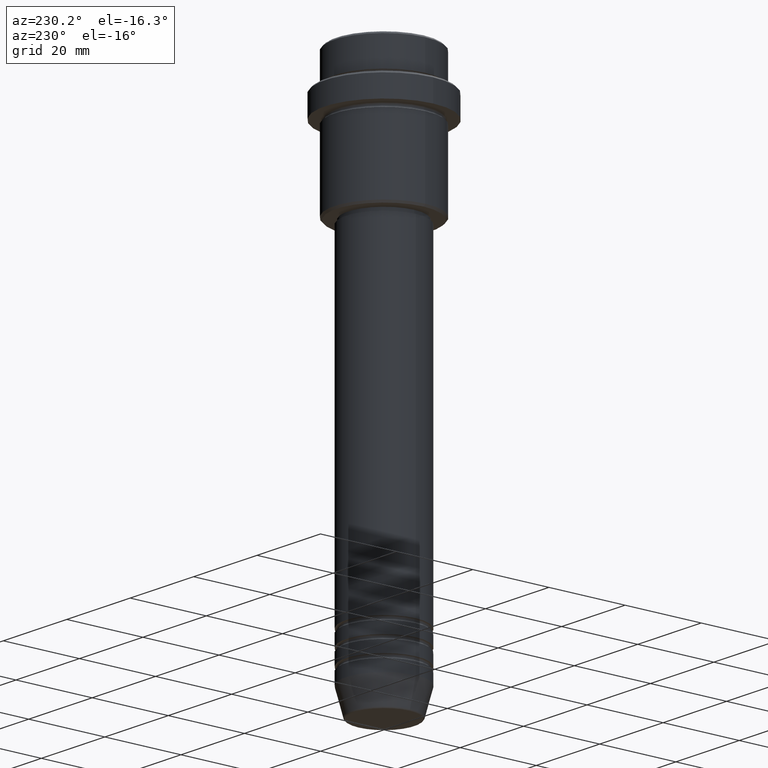
[diagram: clean part render]
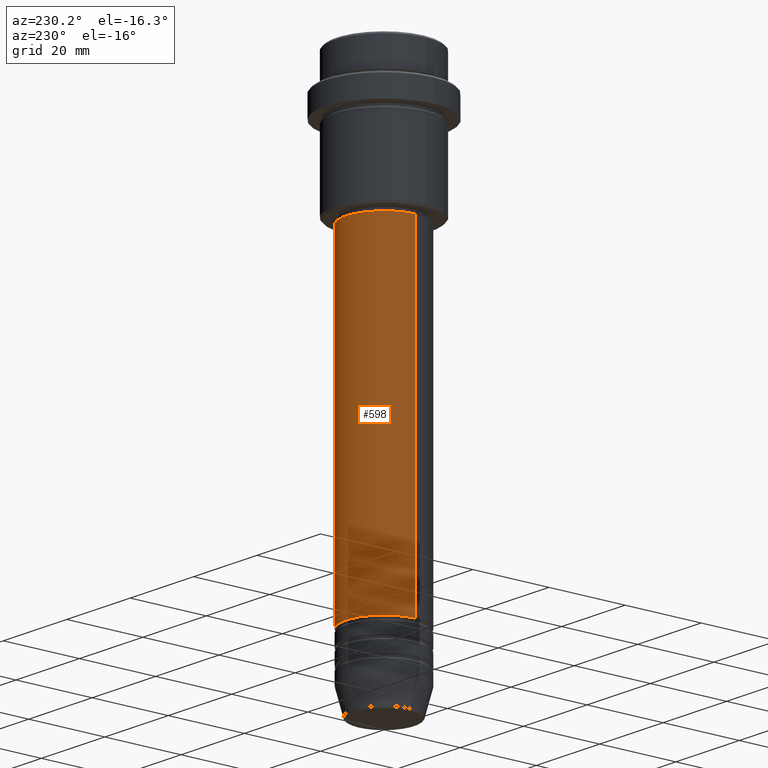
[diagram: same view with one face highlighted and labeled with its STEP entity id]
A machine part, auxiliary view. The second image highlights one B-rep face of the part: STEP entity #598.
In plain terms, the highlighted cylindrical surface (partial cylindrical patch) has radius 10 mm, axis along (-0, -0, 1).
Its self-contained STEP definition (entity closure, byte-faithful):
#10 = CARTESIAN_POINT ( 'NONE',  ( -10.00000000000000178, 1.224646799147353454E-15, 0.000000000000000000 ) ) ;
#45 = AXIS2_PLACEMENT_3D ( 'NONE', #1020, #927, #697 ) ;
#70 = LINE ( 'NONE', #1149, #848 ) ;
#160 = VERTEX_POINT ( 'NONE', #644 ) ;
#193 = ORIENTED_EDGE ( 'NONE', *, *, #1309, .F. ) ;
#234 = FACE_OUTER_BOUND ( 'NONE', #1215, .T. ) ;
#244 = CARTESIAN_POINT ( 'NONE',  ( 10.00000000000000000, 0.000000000000000000, -121.9999999999998721 ) ) ;
#284 = CARTESIAN_POINT ( 'NONE',  ( -10.00000000000000000, 1.224646799147353256E-15, -121.9999999999998721 ) ) ;
#314 = CYLINDRICAL_SURFACE ( 'NONE', #1027, 10.00000000000000178 ) ;
#321 = VERTEX_POINT ( 'NONE', #244 ) ;
#519 = DIRECTION ( 'NONE',  ( -0.000000000000000000, -0.000000000000000000, 1.000000000000000000 ) ) ;
#545 = DIRECTION ( 'NONE',  ( 1.000000000000000000, 0.000000000000000000, 0.000000000000000000 ) ) ;
#551 = AXIS2_PLACEMENT_3D ( 'NONE', #939, #1373, #823 ) ;
#562 = LINE ( 'NONE', #10, #777 ) ;
#598 = ADVANCED_FACE ( 'NONE', ( #234 ), #314, .T. ) ;
#644 = CARTESIAN_POINT ( 'NONE',  ( -10.00000000000000178, 1.224646799147353454E-15, -36.99999999999999289 ) ) ;
#697 = DIRECTION ( 'NONE',  ( 1.000000000000000000, 0.000000000000000000, 0.000000000000000000 ) ) ;
#732 = EDGE_CURVE ( 'NONE', #321, #1372, #754, .T. ) ;
#754 = CIRCLE ( 'NONE', #45, 10.00000000000000000 ) ;
#764 = CARTESIAN_POINT ( 'NONE',  ( 10.00000000000000178, 0.000000000000000000, -36.99999999999999289 ) ) ;
#777 = VECTOR ( 'NONE', #1079, 1000.000000000000000 ) ;
#823 = DIRECTION ( 'NONE',  ( 1.000000000000000000, 0.000000000000000000, 0.000000000000000000 ) ) ;
#848 = VECTOR ( 'NONE', #519, 1000.000000000000000 ) ;
#927 = DIRECTION ( 'NONE',  ( -0.000000000000000000, -0.000000000000000000, 1.000000000000000000 ) ) ;
#939 = CARTESIAN_POINT ( 'NONE',  ( 0.000000000000000000, 0.000000000000000000, -36.99999999999999289 ) ) ;
#986 = ORIENTED_EDGE ( 'NONE', *, *, #1281, .F. ) ;
#1020 = CARTESIAN_POINT ( 'NONE',  ( 0.000000000000000000, 0.000000000000000000, -121.9999999999998721 ) ) ;
#1027 = AXIS2_PLACEMENT_3D ( 'NONE', #1415, #1218, #545 ) ;
#1073 = EDGE_CURVE ( 'NONE', #1372, #160, #562, .T. ) ;
#1079 = DIRECTION ( 'NONE',  ( -0.000000000000000000, -0.000000000000000000, 1.000000000000000000 ) ) ;
#1098 = ORIENTED_EDGE ( 'NONE', *, *, #732, .T. ) ;
#1149 = CARTESIAN_POINT ( 'NONE',  ( 10.00000000000000178, 0.000000000000000000, 0.000000000000000000 ) ) ;
#1163 = CIRCLE ( 'NONE', #551, 10.00000000000000178 ) ;
#1175 = ORIENTED_EDGE ( 'NONE', *, *, #1073, .T. ) ;
#1215 = EDGE_LOOP ( 'NONE', ( #1098, #1175, #986, #193 ) ) ;
#1218 = DIRECTION ( 'NONE',  ( -0.000000000000000000, -0.000000000000000000, 1.000000000000000000 ) ) ;
#1281 = EDGE_CURVE ( 'NONE', #1389, #160, #1163, .T. ) ;
#1309 = EDGE_CURVE ( 'NONE', #321, #1389, #70, .T. ) ;
#1372 = VERTEX_POINT ( 'NONE', #284 ) ;
#1373 = DIRECTION ( 'NONE',  ( -0.000000000000000000, -0.000000000000000000, 1.000000000000000000 ) ) ;
#1389 = VERTEX_POINT ( 'NONE', #764 ) ;
#1415 = CARTESIAN_POINT ( 'NONE',  ( 0.000000000000000000, 0.000000000000000000, 0.000000000000000000 ) ) ;